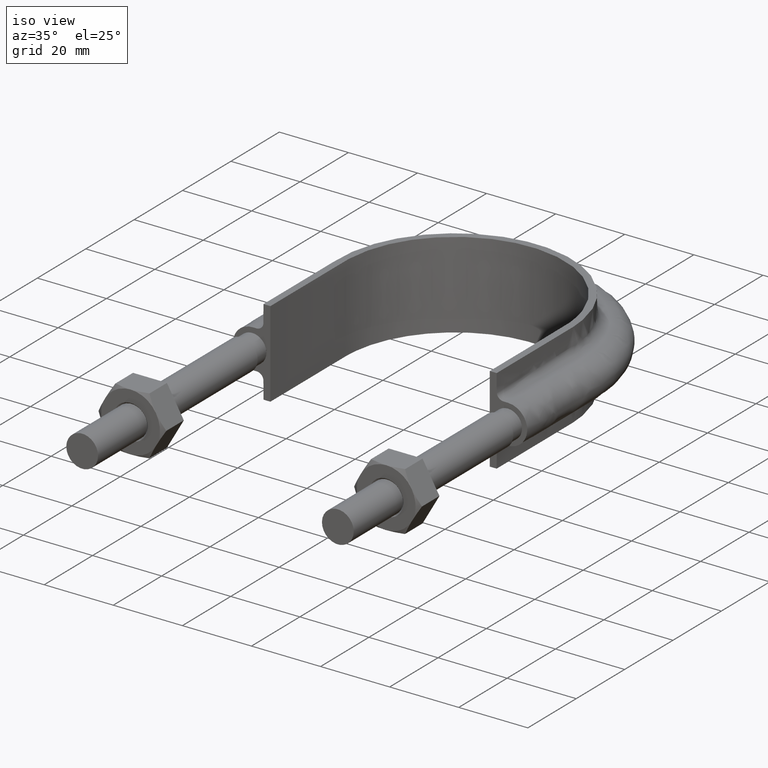
[diagram: clean part render]
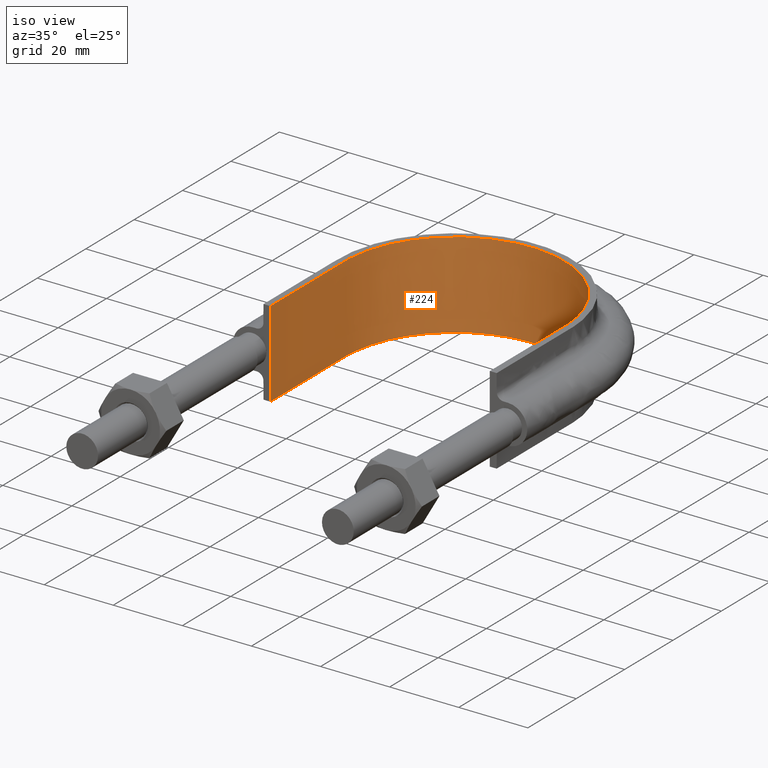
[diagram: same view with one face highlighted and labeled with its STEP entity id]
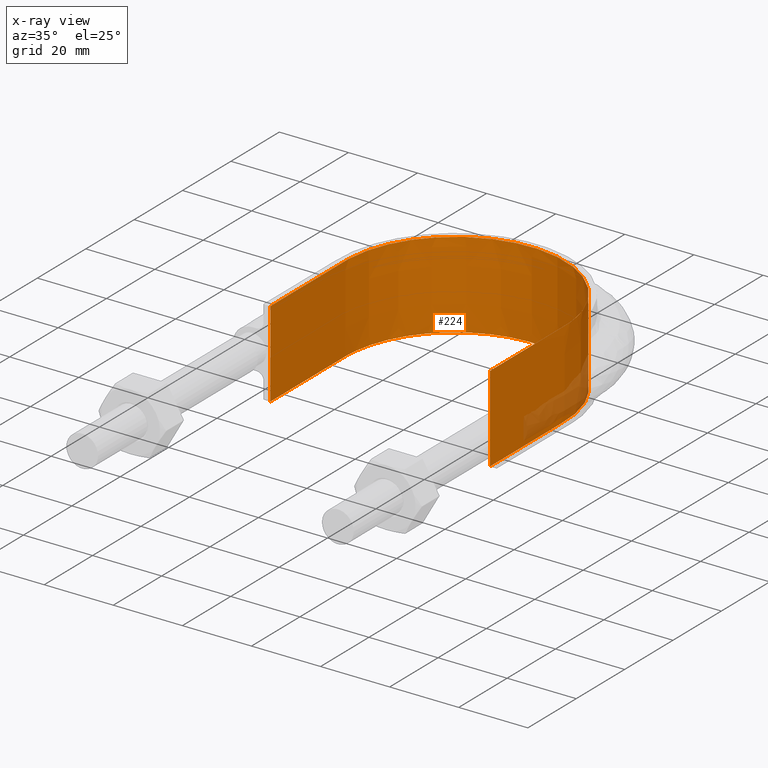
[diagram: x-ray of the same camera — body ghosted, the highlighted face saturated]
A machine part, iso view. The second image highlights one B-rep face of the part: STEP entity #224.
The next image is the same camera in x-ray: the body ghosted, the highlighted face saturated — about 5% of this face is hidden behind the body in this view.
In plain terms, the highlighted face is a SurfaceOfExtrusion surface.
Its self-contained STEP definition (entity closure, byte-faithful):
#224 = ADVANCED_FACE( '', ( #308 ), #309, .T. );
#308 = FACE_OUTER_BOUND( '', #1006, .T. );
#309 = SURFACE_OF_LINEAR_EXTRUSION( '', #1007, #1008 );
#1006 = EDGE_LOOP( '', ( #1499, #1500, #1501, #1502 ) );
#1007 = B_SPLINE_CURVE_WITH_KNOTS( '', 3, ( #1503, #1504, #1505, #1506, #1507, #1508, #1509, #1510, #1511, #1512, #1513, #1514, #1515, #1516, #1517, #1518, #1519 ), .UNSPECIFIED., .F., .F., ( 4, 3, 1, 1, 1, 1, 1, 1, 1, 3, 4 ), ( -7.93504531722054, -7.00000000000000, -6.50000000000000, -6.00000000000000, -5.00000000000000, -4.00000000000000, -3.00000000000000, -2.00000000000000, -1.50000000000000, -1.00000000000000, -0.0649546827794584 ), .UNSPECIFIED. );
#1008 = VECTOR( '', #1520, 1000.00000000000 );
#1499 = ORIENTED_EDGE( '', *, *, #2015, .T. );
#1500 = ORIENTED_EDGE( '', *, *, #2005, .F. );
#1501 = ORIENTED_EDGE( '', *, *, #2016, .F. );
#1502 = ORIENTED_EDGE( '', *, *, #2009, .T. );
#1503 = CARTESIAN_POINT( '', ( 31.7500000000000, 70.3000000000001, 12.5000100000910 ) );
#1504 = CARTESIAN_POINT( '', ( 31.7500000000000, 80.6166666666667, 12.5000100000910 ) );
#1505 = CARTESIAN_POINT( '', ( 31.7500000000001, 90.9333333333334, 12.5000100000910 ) );
#1506 = CARTESIAN_POINT( '', ( 31.7500000000001, 101.250000000000, 12.5000100000910 ) );
#1507 = CARTESIAN_POINT( '', ( 31.7500000000001, 104.008555071705, 12.5000100000910 ) );
#1508 = CARTESIAN_POINT( '', ( 31.0059900824327, 109.562987639967, 12.5000100000910 ) );
#1509 = CARTESIAN_POINT( '', ( 26.7553231191718, 119.891942614723, 12.5000100000910 ) );
#1510 = CARTESIAN_POINT( '', ( 16.6167400676300, 130.032578267657, 12.5000100000910 ) );
#1511 = CARTESIAN_POINT( '', ( 2.34078545851397E-014, 134.483710866172, 12.5000100000910 ) );
#1512 = CARTESIAN_POINT( '', ( -16.6167400676300, 130.032578267657, 12.5000100000910 ) );
#1513 = CARTESIAN_POINT( '', ( -26.7553231191717, 119.891942614723, 12.5000100000910 ) );
#1514 = CARTESIAN_POINT( '', ( -31.0059900824327, 109.562987639967, 12.5000100000910 ) );
#1515 = CARTESIAN_POINT( '', ( -31.7500000000000, 104.008555071705, 12.5000100000910 ) );
#1516 = CARTESIAN_POINT( '', ( -31.7500000000000, 101.250000000000, 12.5000100000910 ) );
#1517 = CARTESIAN_POINT( '', ( -31.7500000000000, 90.9333333333334, 12.5000100000910 ) );
#1518 = CARTESIAN_POINT( '', ( -31.7500000000000, 80.6166666666667, 12.5000100000910 ) );
#1519 = CARTESIAN_POINT( '', ( -31.7500000000000, 70.3000000000001, 12.5000100000910 ) );
#1520 = DIRECTION( '', ( 0.000000000000000, 0.000000000000000, -1.00000000000000 ) );
#2005 = EDGE_CURVE( '', #2157, #2160, #2161, .T. );
#2009 = EDGE_CURVE( '', #2167, #2168, #2169, .T. );
#2015 = EDGE_CURVE( '', #2168, #2160, #2177, .F. );
#2016 = EDGE_CURVE( '', #2167, #2157, #2178, .T. );
#2157 = VERTEX_POINT( '', #2416 );
#2160 = VERTEX_POINT( '', #2420 );
#2161 = LINE( '', #2421, #2422 );
#2167 = VERTEX_POINT( '', #2468 );
#2168 = VERTEX_POINT( '', #2469 );
#2169 = LINE( '', #2470, #2471 );
#2177 = B_SPLINE_CURVE_WITH_KNOTS( '', 3, ( #2543, #2544, #2545, #2546, #2547, #2548, #2549, #2550, #2551, #2552, #2553, #2554, #2555, #2556, #2557, #2558, #2559 ), .UNSPECIFIED., .F., .F., ( 4, 3, 1, 1, 1, 1, 1, 1, 1, 3, 4 ), ( -7.93504531722054, -7.00000000000000, -6.50000000000000, -6.00000000000000, -5.00000000000000, -4.00000000000000, -3.00000000000000, -2.00000000000000, -1.50000000000000, -1.00000000000000, -0.0649546827794584 ), .UNSPECIFIED. );
#2178 = B_SPLINE_CURVE_WITH_KNOTS( '', 3, ( #2560, #2561, #2562, #2563, #2564, #2565, #2566, #2567, #2568, #2569, #2570, #2571, #2572, #2573, #2574, #2575, #2576, #2577, #2578, #2579, #2580, #2581, #2582, #2583, #2584, #2585, #2586, #2587, #2588, #2589, #2590, #2591, #2592, #2593, #2594, #2595, #2596, #2597, #2598, #2599, #2600, #2601, #2602, #2603, #2604, #2605, #2606, #2607, #2608, #2609, #2610, #2611, #2612, #2613, #2614, #2615, #2616, #2617, #2618, #2619, #2620, #2621, #2622, #2623, #2624, #2625, #2626, #2627, #2628, #2629, #2630, #2631, #2632, #2633 ), .UNSPECIFIED., .F., .F., ( 4, 1, 2, 2, 2, 2, 2, 2, 2, 2, 2, 2, 2, 2, 2, 2, 2, 2, 2, 2, 2, 2, 2, 2, 2, 2, 2, 2, 2, 2, 2, 2, 2, 2, 2, 2, 1, 4 ), ( 0.000000000000000, 0.0202102050147198, 0.0303153075220797, 0.0315784453354996, 0.0328415831489196, 0.0353678587757595, 0.0404204100294393, 0.0454729612831191, 0.0479992369099590, 0.0505255125367989, 0.0555780637904787, 0.0581043394173186, 0.0606306150441585, 0.0656831662978382, 0.0682094419246781, 0.0707357175515180, 0.0757882688051978, 0.0770514066186178, 0.0783145444320378, 0.0808408200588777, 0.0858933713125575, 0.0884196469393974, 0.0909459225662374, 0.0959984738199172, 0.0985247494467571, 0.101051025073597, 0.106103576327277, 0.108629851954117, 0.111156127580957, 0.116208678834637, 0.118734954461476, 0.121261230088316, 0.126313781341996, 0.128840056968836, 0.130103194782256, 0.131366332595676, 0.141471435103035, 0.161681640117755 ), .UNSPECIFIED. );
#2416 = CARTESIAN_POINT( '', ( 31.7500000000000, 70.3000000000001, 12.5000000000000 ) );
#2420 = CARTESIAN_POINT( '', ( 31.7500000000000, 70.3000000000001, -12.5000000000000 ) );
#2421 = CARTESIAN_POINT( '', ( 31.7500000000000, 70.3000000000001, 12.5000100000910 ) );
#2422 = VECTOR( '', #3075, 1000.00000000000 );
#2468 = CARTESIAN_POINT( '', ( -31.7500000000000, 70.3000000000001, 12.5000000000000 ) );
#2469 = CARTESIAN_POINT( '', ( -31.7500000000000, 70.3000000000001, -12.5000000000000 ) );
#2470 = CARTESIAN_POINT( '', ( -31.7500000000000, 70.3000000000001, 12.5000100000910 ) );
#2471 = VECTOR( '', #3077, 1000.00000000000 );
#2543 = CARTESIAN_POINT( '', ( 31.7500000000000, 70.3000000000001, -12.5000000000000 ) );
#2544 = CARTESIAN_POINT( '', ( 31.7500000000000, 80.6166666666667, -12.5000000000000 ) );
#2545 = CARTESIAN_POINT( '', ( 31.7500000000001, 90.9333333333334, -12.5000000000000 ) );
#2546 = CARTESIAN_POINT( '', ( 31.7500000000001, 101.250000000000, -12.5000000000000 ) );
#2547 = CARTESIAN_POINT( '', ( 31.7500000000001, 104.008555071705, -12.5000000000000 ) );
#2548 = CARTESIAN_POINT( '', ( 31.0059900824327, 109.562987639967, -12.5000000000000 ) );
#2549 = CARTESIAN_POINT( '', ( 26.7553231191718, 119.891942614723, -12.5000000000000 ) );
#2550 = CARTESIAN_POINT( '', ( 16.6167400676300, 130.032578267657, -12.5000000000000 ) );
#2551 = CARTESIAN_POINT( '', ( 2.34078545851397E-014, 134.483710866172, -12.5000000000000 ) );
#2552 = CARTESIAN_POINT( '', ( -16.6167400676300, 130.032578267657, -12.5000000000000 ) );
#2553 = CARTESIAN_POINT( '', ( -26.7553231191717, 119.891942614723, -12.5000000000000 ) );
#2554 = CARTESIAN_POINT( '', ( -31.0059900824327, 109.562987639967, -12.5000000000000 ) );
#2555 = CARTESIAN_POINT( '', ( -31.7500000000000, 104.008555071705, -12.5000000000000 ) );
#2556 = CARTESIAN_POINT( '', ( -31.7500000000000, 101.250000000000, -12.5000000000000 ) );
#2557 = CARTESIAN_POINT( '', ( -31.7500000000000, 90.9333333333334, -12.5000000000000 ) );
#2558 = CARTESIAN_POINT( '', ( -31.7500000000000, 80.6166666666667, -12.5000000000000 ) );
#2559 = CARTESIAN_POINT( '', ( -31.7500000000000, 70.3000000000001, -12.5000000000000 ) );
#2560 = CARTESIAN_POINT( '', ( -31.7500000000000, 70.3000000000001, 12.5000000000000 ) );
#2561 = CARTESIAN_POINT( '', ( -31.7500000000000, 77.0369293437400, 12.5000000000000 ) );
#2562 = CARTESIAN_POINT( '', ( -31.7500000000000, 87.1423233593499, 12.5000000000000 ) );
#2563 = CARTESIAN_POINT( '', ( -31.7500000000000, 97.2477173749597, 12.5000000000000 ) );
#2564 = CARTESIAN_POINT( '', ( -31.7500000000000, 101.037240130813, 12.5000000000000 ) );
#2565 = CARTESIAN_POINT( '', ( -31.7521642610726, 101.458314654079, 12.5000000000000 ) );
#2566 = CARTESIAN_POINT( '', ( -31.7349635021835, 102.300300168621, 12.5000000000000 ) );
#2567 = CARTESIAN_POINT( '', ( -31.7177711555355, 102.721227663076, 12.5000000000000 ) );
#2568 = CARTESIAN_POINT( '', ( -31.6406833640713, 103.983816372023, 12.5000000000000 ) );
#2569 = CARTESIAN_POINT( '', ( -31.5550232902433, 104.827433936328, 12.5000000000000 ) );
#2570 = CARTESIAN_POINT( '', ( -31.1980880763544, 107.342898742439, 12.5000000000000 ) );
#2571 = CARTESIAN_POINT( '', ( -30.8313275633497, 108.980474491936, 12.5000000000000 ) );
#2572 = CARTESIAN_POINT( '', ( -29.8499384171190, 112.179803643038, 12.5000000000000 ) );
#2573 = CARTESIAN_POINT( '', ( -29.2352287768351, 113.741532264753, 12.5000000000000 ) );
#2574 = CARTESIAN_POINT( '', ( -28.1157425086705, 116.023734272610, 12.5000000000000 ) );
#2575 = CARTESIAN_POINT( '', ( -27.7123205707261, 116.768021831126, 12.5000000000000 ) );
#2576 = CARTESIAN_POINT( '', ( -26.8521555868078, 118.211923772938, 12.5000000000000 ) );
#2577 = CARTESIAN_POINT( '', ( -26.3945912524833, 118.913601685329, 12.5000000000000 ) );
#2578 = CARTESIAN_POINT( '', ( -24.9420027889357, 120.959697403511, 12.5000000000000 ) );
#2579 = CARTESIAN_POINT( '', ( -23.8677478557203, 122.245667500296, 12.5000000000000 ) );
#2580 = CARTESIAN_POINT( '', ( -22.0955390107112, 124.055982712581, 12.5000000000000 ) );
#2581 = CARTESIAN_POINT( '', ( -21.4770182503660, 124.639758705435, 12.5000000000000 ) );
#2582 = CARTESIAN_POINT( '', ( -20.2074882028423, 125.746700479523, 12.5000000000000 ) );
#2583 = CARTESIAN_POINT( '', ( -19.5539268780710, 126.272637365224, 12.5000000000000 ) );
#2584 = CARTESIAN_POINT( '', ( -17.5373630401925, 127.768591691250, 12.5000000000000 ) );
#2585 = CARTESIAN_POINT( '', ( -16.1185968098038, 128.656922938864, 12.5000000000000 ) );
#2586 = CARTESIAN_POINT( '', ( -13.8742414518405, 129.819193950456, 12.5000000000000 ) );
#2587 = CARTESIAN_POINT( '', ( -13.1033698661120, 130.179720262199, 12.5000000000000 ) );
#2588 = CARTESIAN_POINT( '', ( -11.5461475993490, 130.833519181579, 12.5000000000000 ) );
#2589 = CARTESIAN_POINT( '', ( -10.7587533674359, 131.127710245229, 12.5000000000000 ) );
#2590 = CARTESIAN_POINT( '', ( -8.37103214347962, 131.915177558429, 12.5000000000000 ) );
#2591 = CARTESIAN_POINT( '', ( -6.74537802808663, 132.314135205256, 12.5000000000000 ) );
#2592 = CARTESIAN_POINT( '', ( -4.67041394773791, 132.653085266091, 12.5000000000000 ) );
#2593 = CARTESIAN_POINT( '', ( -4.25325934051794, 132.712824734268, 12.5000000000000 ) );
#2594 = CARTESIAN_POINT( '', ( -3.41454124584451, 132.815884931808, 12.5000000000000 ) );
#2595 = CARTESIAN_POINT( '', ( -2.99200723809561, 132.859272818654, 12.5000000000000 ) );
#2596 = CARTESIAN_POINT( '', ( -1.72635552123866, 132.963514462402, 12.5000000000000 ) );
#2597 = CARTESIAN_POINT( '', ( -0.885198156832370, 132.998704679312, 12.5000000000000 ) );
#2598 = CARTESIAN_POINT( '', ( 1.63052804050730, 133.002485531795, 12.5000000000000 ) );
#2599 = CARTESIAN_POINT( '', ( 3.29740714852783, 132.870024518896, 12.5000000000000 ) );
#2600 = CARTESIAN_POINT( '', ( 5.78275763505213, 132.474634310495, 12.5000000000000 ) );
#2601 = CARTESIAN_POINT( '', ( 6.60869771038812, 132.309852205478, 12.5000000000000 ) );
#2602 = CARTESIAN_POINT( '', ( 8.25543979056341, 131.912767960653, 12.5000000000000 ) );
#2603 = CARTESIAN_POINT( '', ( 9.06978327184294, 131.681836429455, 12.5000000000000 ) );
#2604 = CARTESIAN_POINT( '', ( 11.4665941867318, 130.899569917024, 12.5000000000000 ) );
#2605 = CARTESIAN_POINT( '', ( 13.0116435012361, 130.257504579382, 12.5000000000000 ) );
#2606 = CARTESIAN_POINT( '', ( 15.2488688310604, 129.111038002786, 12.5000000000000 ) );
#2607 = CARTESIAN_POINT( '', ( 15.9810871869032, 128.698019848223, 12.5000000000000 ) );
#2608 = CARTESIAN_POINT( '', ( 17.4176237616976, 127.808310923291, 12.5000000000000 ) );
#2609 = CARTESIAN_POINT( '', ( 18.1220003794339, 127.331330621377, 12.5000000000000 ) );
#2610 = CARTESIAN_POINT( '', ( 20.1561445082391, 125.832400395310, 12.5000000000000 ) );
#2611 = CARTESIAN_POINT( '', ( 21.4210334689788, 124.735194028140, 12.5000000000000 ) );
#2612 = CARTESIAN_POINT( '', ( 23.1855996936676, 122.946846204848, 12.5000000000000 ) );
#2613 = CARTESIAN_POINT( '', ( 23.7515184221973, 122.326821280248, 12.5000000000000 ) );
#2614 = CARTESIAN_POINT( '', ( 24.8377613405120, 121.037821344084, 12.5000000000000 ) );
#2615 = CARTESIAN_POINT( '', ( 25.3600679624071, 120.365806614812, 12.5000000000000 ) );
#2616 = CARTESIAN_POINT( '', ( 26.8325624869534, 118.305840862197, 12.5000000000000 ) );
#2617 = CARTESIAN_POINT( '', ( 27.6935953982135, 116.869317148901, 12.5000000000000 ) );
#2618 = CARTESIAN_POINT( '', ( 28.8070288284511, 114.621194344649, 12.5000000000000 ) );
#2619 = CARTESIAN_POINT( '', ( 29.1486450555321, 113.856346530460, 12.5000000000000 ) );
#2620 = CARTESIAN_POINT( '', ( 29.7727235152820, 112.295652719998, 12.5000000000000 ) );
#2621 = CARTESIAN_POINT( '', ( 30.0559168439982, 111.497410190507, 12.5000000000000 ) );
#2622 = CARTESIAN_POINT( '', ( 30.8095353334065, 109.071268261276, 12.5000000000000 ) );
#2623 = CARTESIAN_POINT( '', ( 31.1789547351960, 107.434164840829, 12.5000000000000 ) );
#2624 = CARTESIAN_POINT( '', ( 31.5404185934874, 104.950006097702, 12.5000000000000 ) );
#2625 = CARTESIAN_POINT( '', ( 31.6285547622308, 104.117166940136, 12.5000000000000 ) );
#2626 = CARTESIAN_POINT( '', ( 31.7108071430198, 102.860518138107, 12.5000000000000 ) );
#2627 = CARTESIAN_POINT( '', ( 31.7298830842712, 102.440401128766, 12.5000000000000 ) );
#2628 = CARTESIAN_POINT( '', ( 31.7509054532004, 101.597632906171, 12.5000000000000 ) );
#2629 = CARTESIAN_POINT( '', ( 31.7500000000001, 101.174559775058, 12.5000000000000 ) );
#2630 = CARTESIAN_POINT( '', ( 31.7500000000001, 97.3681072000510, 12.5000000000000 ) );
#2631 = CARTESIAN_POINT( '', ( 31.7500000000001, 87.2175670000318, 12.5000000000000 ) );
#2632 = CARTESIAN_POINT( '', ( 31.7500000000000, 77.0670268000128, 12.5000000000000 ) );
#2633 = CARTESIAN_POINT( '', ( 31.7500000000000, 70.3000000000001, 12.5000000000000 ) );
#3075 = DIRECTION( '', ( 0.000000000000000, 0.000000000000000, -1.00000000000000 ) );
#3077 = DIRECTION( '', ( 0.000000000000000, 0.000000000000000, -1.00000000000000 ) );